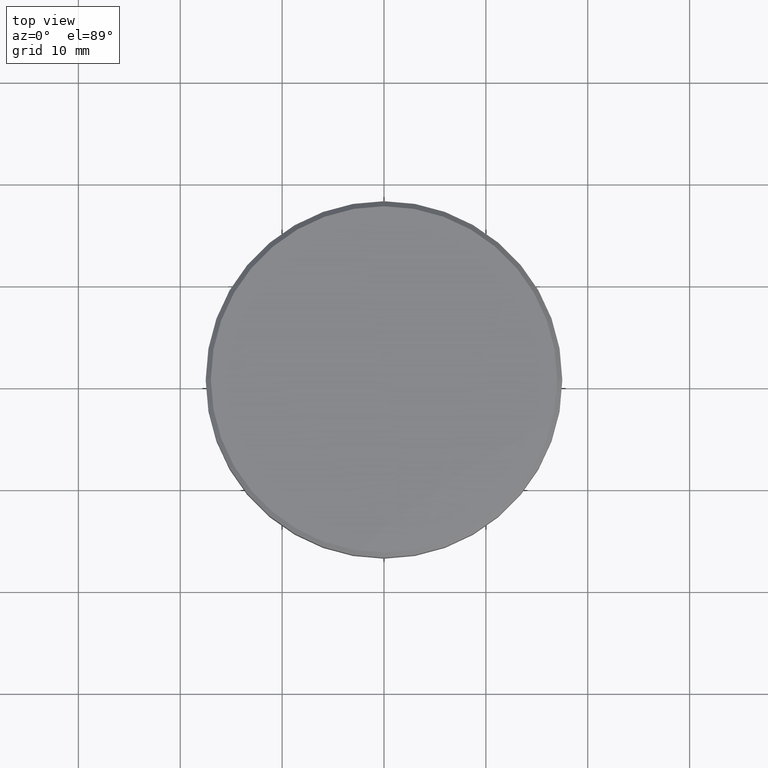
[diagram: clean part render]
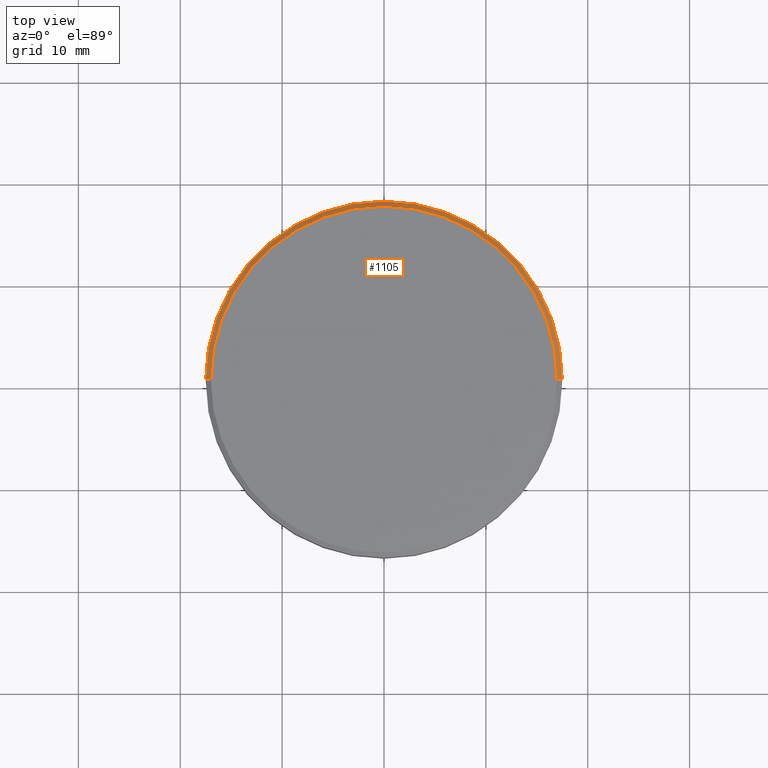
[diagram: same view with one face highlighted and labeled with its STEP entity id]
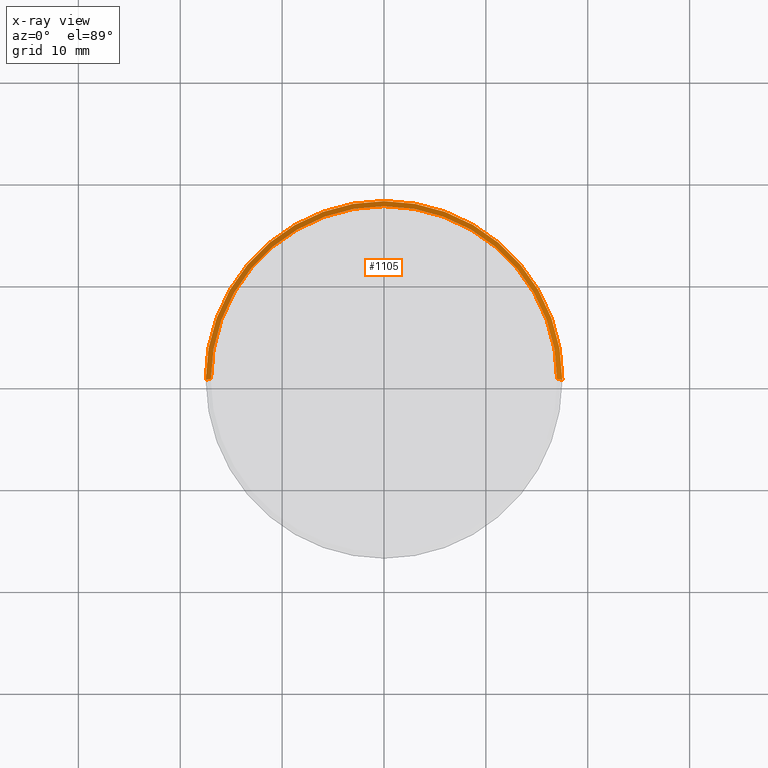
[diagram: x-ray of the same camera — body ghosted, the highlighted face saturated]
A machine part, top view. The second image highlights one B-rep face of the part: STEP entity #1105.
The next image is the same camera in x-ray: the body ghosted, the highlighted face saturated — about 0% of this face is hidden behind the body in this view.
In plain terms, the highlighted conical surface has half-angle 45 deg.
Its self-contained STEP definition (entity closure, byte-faithful):
#2 = DIRECTION ( 'NONE',  ( 0.000000000000000000, 0.000000000000000000, -1.000000000000000000 ) ) ;
#5 = ORIENTED_EDGE ( 'NONE', *, *, #984, .T. ) ;
#74 = LINE ( 'NONE', #892, #839 ) ;
#92 = DIRECTION ( 'NONE',  ( -0.000000000000000000, -0.000000000000000000, 1.000000000000000000 ) ) ;
#96 = CARTESIAN_POINT ( 'NONE',  ( 16.99999999999998579, 2.112515728529183278E-15, 0.000000000000000000 ) ) ;
#98 = CIRCLE ( 'NONE', #217, 16.99999999999998579 ) ;
#100 = CARTESIAN_POINT ( 'NONE',  ( -16.99999999999998579, 0.000000000000000000, 0.000000000000000000 ) ) ;
#107 = DIRECTION ( 'NONE',  ( -1.000000000000000000, 0.000000000000000000, 0.000000000000000000 ) ) ;
#120 = DIRECTION ( 'NONE',  ( 0.000000000000000000, 0.000000000000000000, -1.000000000000000000 ) ) ;
#161 = VECTOR ( 'NONE', #671, 1000.000000000000000 ) ;
#193 = CONICAL_SURFACE ( 'NONE', #706, 16.99999999999998579, 0.7853981633974415066 ) ;
#204 = EDGE_CURVE ( 'NONE', #510, #241, #98, .T. ) ;
#213 = CARTESIAN_POINT ( 'NONE',  ( -17.50000000000000000, 2.143131898507868248E-15, -0.5000000000000212053 ) ) ;
#217 = AXIS2_PLACEMENT_3D ( 'NONE', #740, #92, #562 ) ;
#241 = VERTEX_POINT ( 'NONE', #100 ) ;
#279 = ORIENTED_EDGE ( 'NONE', *, *, #681, .F. ) ;
#489 = VERTEX_POINT ( 'NONE', #1002 ) ;
#510 = VERTEX_POINT ( 'NONE', #96 ) ;
#554 = FACE_OUTER_BOUND ( 'NONE', #684, .T. ) ;
#562 = DIRECTION ( 'NONE',  ( 1.000000000000000000, 0.000000000000000000, 0.000000000000000000 ) ) ;
#606 = EDGE_CURVE ( 'NONE', #718, #489, #903, .T. ) ;
#650 = ORIENTED_EDGE ( 'NONE', *, *, #204, .F. ) ;
#662 = CARTESIAN_POINT ( 'NONE',  ( -16.99999999999998579, 0.000000000000000000, 0.000000000000000000 ) ) ;
#671 = DIRECTION ( 'NONE',  ( -0.7071067811865426878, 0.000000000000000000, -0.7071067811865524577 ) ) ;
#681 = EDGE_CURVE ( 'NONE', #241, #718, #859, .T. ) ;
#684 = EDGE_LOOP ( 'NONE', ( #650, #5, #762, #279 ) ) ;
#706 = AXIS2_PLACEMENT_3D ( 'NONE', #853, #120, #107 ) ;
#708 = AXIS2_PLACEMENT_3D ( 'NONE', #814, #2, #818 ) ;
#718 = VERTEX_POINT ( 'NONE', #213 ) ;
#740 = CARTESIAN_POINT ( 'NONE',  ( 0.000000000000000000, 0.000000000000000000, 0.000000000000000000 ) ) ;
#762 = ORIENTED_EDGE ( 'NONE', *, *, #606, .F. ) ;
#814 = CARTESIAN_POINT ( 'NONE',  ( 0.000000000000000000, 0.000000000000000000, -0.5000000000000212053 ) ) ;
#817 = DIRECTION ( 'NONE',  ( 0.7071067811865426878, 8.659560562354874926E-17, -0.7071067811865524577 ) ) ;
#818 = DIRECTION ( 'NONE',  ( 1.000000000000000000, 0.000000000000000000, 0.000000000000000000 ) ) ;
#839 = VECTOR ( 'NONE', #817, 1000.000000000000000 ) ;
#853 = CARTESIAN_POINT ( 'NONE',  ( 0.000000000000000000, 0.000000000000000000, 0.000000000000000000 ) ) ;
#859 = LINE ( 'NONE', #662, #161 ) ;
#892 = CARTESIAN_POINT ( 'NONE',  ( 16.99999999999998579, 2.081899558550499096E-15, 0.000000000000000000 ) ) ;
#903 = CIRCLE ( 'NONE', #708, 17.50000000000000000 ) ;
#984 = EDGE_CURVE ( 'NONE', #510, #489, #74, .T. ) ;
#1002 = CARTESIAN_POINT ( 'NONE',  ( 17.50000000000000000, 0.000000000000000000, -0.5000000000000212053 ) ) ;
#1105 = ADVANCED_FACE ( 'NONE', ( #554 ), #193, .T. ) ;